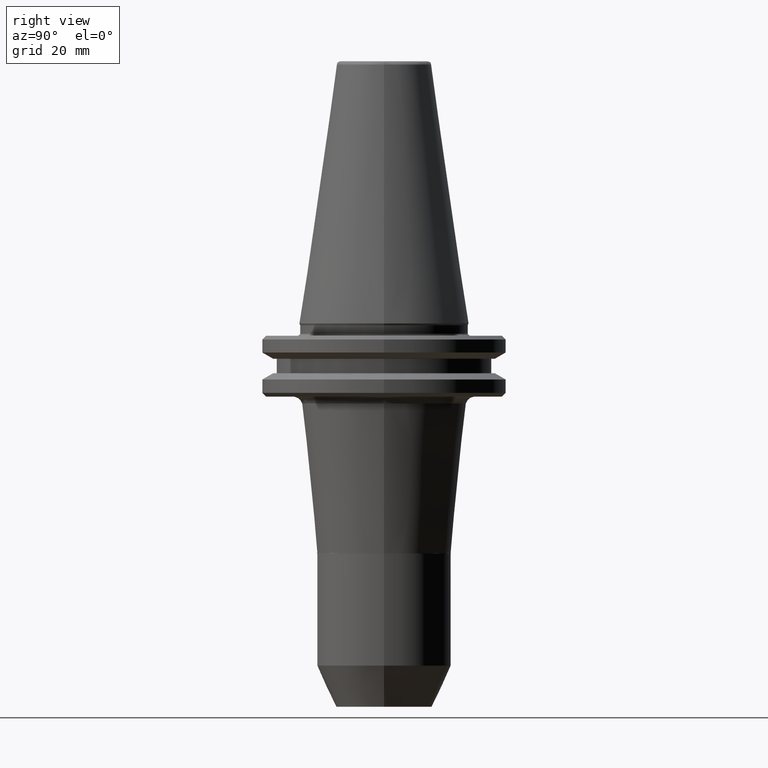
[diagram: clean part render]
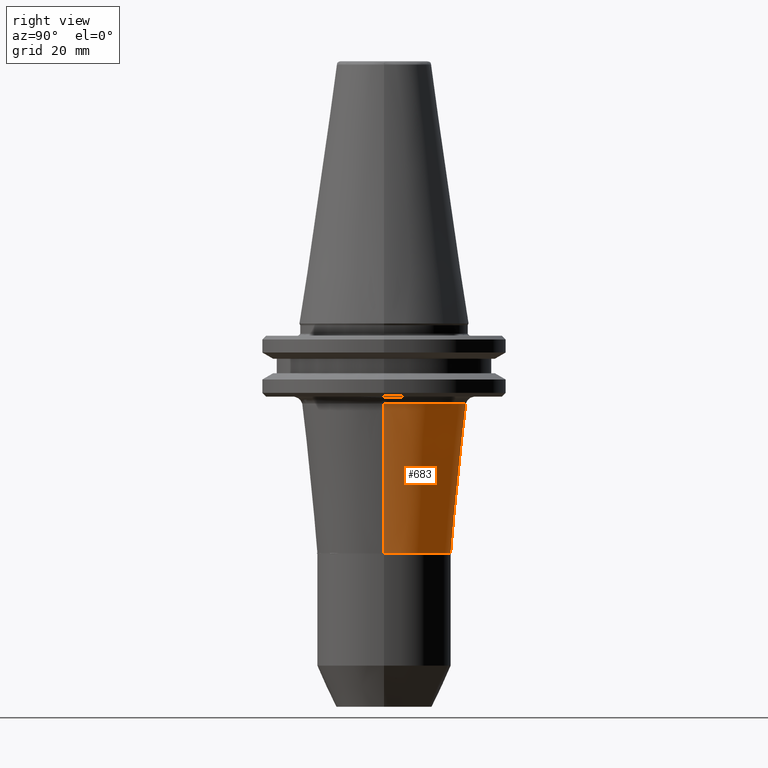
[diagram: same view with one face highlighted and labeled with its STEP entity id]
A machine part, right view. The second image highlights one B-rep face of the part: STEP entity #683.
In plain terms, the highlighted conical surface has half-angle 5.841 deg.
Its self-contained STEP definition (entity closure, byte-faithful):
#29 = CIRCLE ( 'NONE', #763, 17.51038236221939900 ) ;
#77 = DIRECTION ( 'NONE',  ( 0.1017615539291785600, 0.0000000000000000000, 0.9948088188903025900 ) ) ;
#78 = VERTEX_POINT ( 'NONE', #101 ) ;
#97 = DIRECTION ( 'NONE',  ( 1.000000000000000000, 0.0000000000000000000, 0.0000000000000000000 ) ) ;
#101 = CARTESIAN_POINT ( 'NONE',  ( 17.51038236221939900, 0.0000000000000000000, -59.89850326475991000 ) ) ;
#106 = LINE ( 'NONE', #986, #364 ) ;
#121 = LINE ( 'NONE', #1246, #1515 ) ;
#144 = ORIENTED_EDGE ( 'NONE', *, *, #162, .T. ) ;
#162 = EDGE_CURVE ( 'NONE', #200, #853, #1155, .T. ) ;
#176 = EDGE_CURVE ( 'NONE', #78, #853, #106, .T. ) ;
#200 = VERTEX_POINT ( 'NONE', #776 ) ;
#201 = VERTEX_POINT ( 'NONE', #1133 ) ;
#364 = VECTOR ( 'NONE', #77, 1000.000000000000000 ) ;
#376 = DIRECTION ( 'NONE',  ( -0.0000000000000000000, -0.0000000000000000000, -1.000000000000000000 ) ) ;
#507 = CARTESIAN_POINT ( 'NONE',  ( 0.0000000000000000000, 0.0000000000000000000, -20.89647689214164200 ) ) ;
#577 = CONICAL_SURFACE ( 'NONE', #843, 21.50000000000000000, 0.1019380079376348100 ) ;
#654 = DIRECTION ( 'NONE',  ( 1.000000000000000000, 0.0000000000000000000, 0.0000000000000000000 ) ) ;
#656 = DIRECTION ( 'NONE',  ( 1.000000000000000000, 0.0000000000000000000, -3.962731230174999100E-016 ) ) ;
#657 = DIRECTION ( 'NONE',  ( 0.0000000000000000000, 0.0000000000000000000, 1.000000000000000000 ) ) ;
#659 = CARTESIAN_POINT ( 'NONE',  ( 0.0000000000000000000, 0.0000000000000000000, -59.89850326475990300 ) ) ;
#683 = ADVANCED_FACE ( 'NONE', ( #1409 ), #577, .T. ) ;
#759 = AXIS2_PLACEMENT_3D ( 'NONE', #1329, #376, #97 ) ;
#763 = AXIS2_PLACEMENT_3D ( 'NONE', #659, #657, #656 ) ;
#775 = ORIENTED_EDGE ( 'NONE', *, *, #176, .F. ) ;
#776 = CARTESIAN_POINT ( 'NONE',  ( -21.50000000000000000, 2.632990618166809200E-015, -20.89647689214163500 ) ) ;
#843 = AXIS2_PLACEMENT_3D ( 'NONE', #507, #1539, #654 ) ;
#853 = VERTEX_POINT ( 'NONE', #1324 ) ;
#986 = CARTESIAN_POINT ( 'NONE',  ( 21.50000000000000000, 0.0000000000000000000, -20.89647689214164200 ) ) ;
#994 = EDGE_CURVE ( 'NONE', #201, #200, #121, .T. ) ;
#1121 = ORIENTED_EDGE ( 'NONE', *, *, #994, .T. ) ;
#1133 = CARTESIAN_POINT ( 'NONE',  ( -17.51038236221939900, 2.388696994670317400E-015, -59.89850326475990300 ) ) ;
#1141 = ORIENTED_EDGE ( 'NONE', *, *, #1386, .T. ) ;
#1155 = CIRCLE ( 'NONE', #759, 21.50000000000000000 ) ;
#1246 = CARTESIAN_POINT ( 'NONE',  ( -21.50000000000000000, 2.632990618166809200E-015, -20.89647689214164200 ) ) ;
#1248 = DIRECTION ( 'NONE',  ( -0.1017615539291785600, 1.246219612956292800E-017, 0.9948088188903025900 ) ) ;
#1324 = CARTESIAN_POINT ( 'NONE',  ( 21.50000000000000000, 0.0000000000000000000, -20.89647689214163500 ) ) ;
#1329 = CARTESIAN_POINT ( 'NONE',  ( 0.0000000000000000000, 0.0000000000000000000, -20.89647689214163500 ) ) ;
#1386 = EDGE_CURVE ( 'NONE', #78, #201, #29, .T. ) ;
#1409 = FACE_OUTER_BOUND ( 'NONE', #1449, .T. ) ;
#1449 = EDGE_LOOP ( 'NONE', ( #1141, #1121, #144, #775 ) ) ;
#1515 = VECTOR ( 'NONE', #1248, 1000.000000000000000 ) ;
#1539 = DIRECTION ( 'NONE',  ( 0.0000000000000000000, -0.0000000000000000000, 1.000000000000000000 ) ) ;